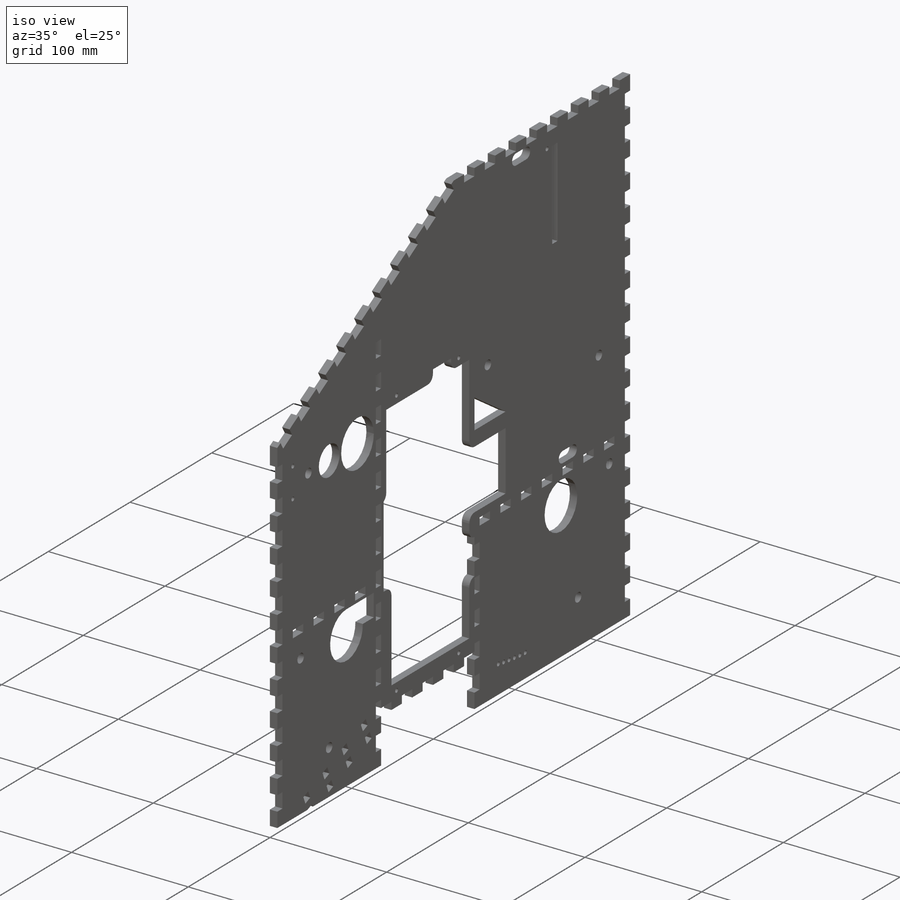
[diagram: iso view]
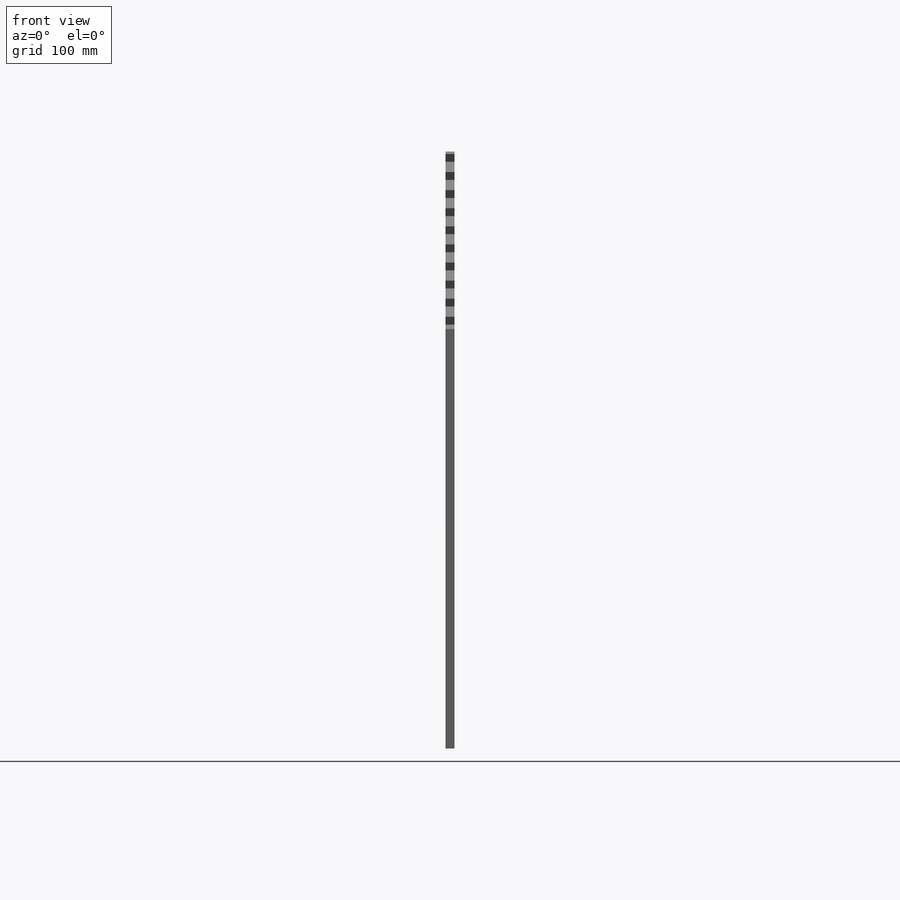
[diagram: front view]
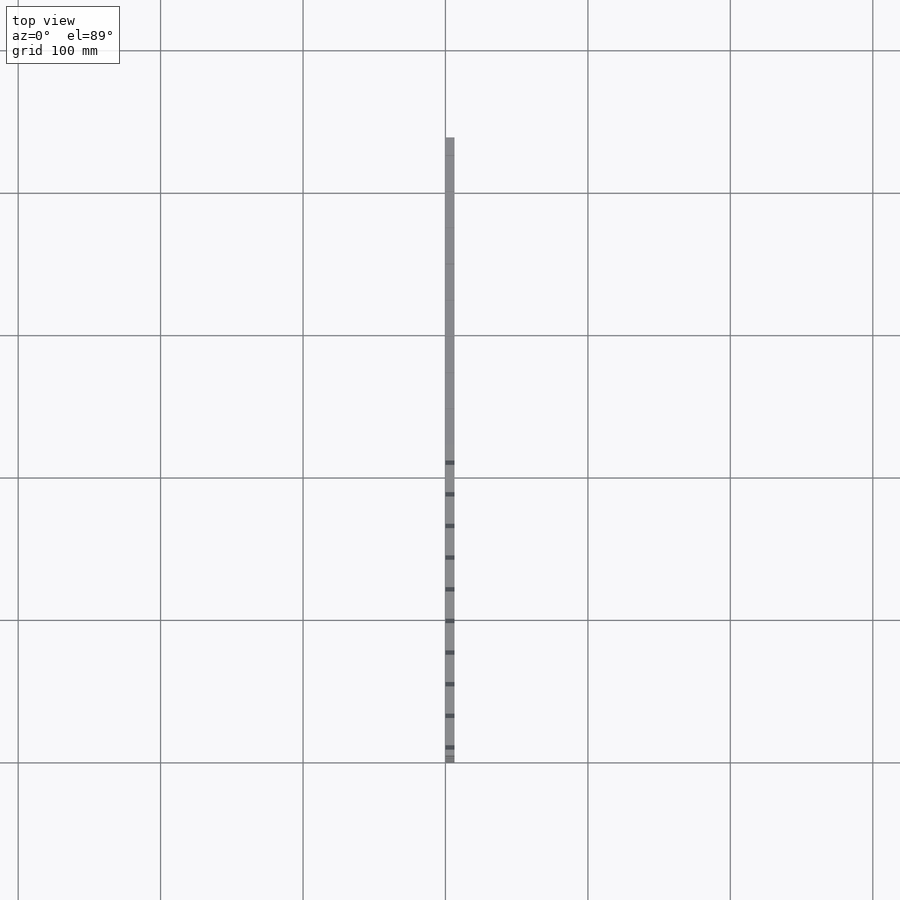
[diagram: top view]
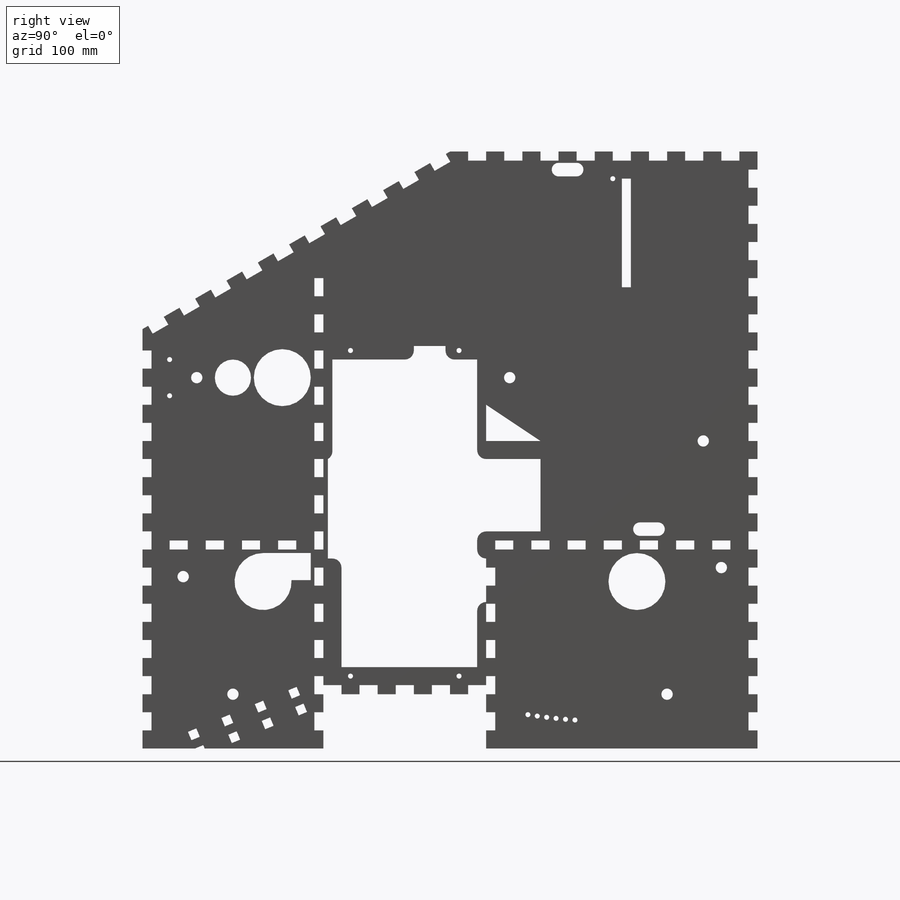
[diagram: right view]
SOLIDWORKS PART (.sldprt)
format: sldprt  version: not decoded by parser v0  size: 1,797,632 bytes
history: native  units: mm
features: sketch x35, cut_extrude x32, pattern_linear x10, extrude x3, fillet x2, material x1 (+13 scaffold rows collapsed)
feature tree (96):
  scaffold x13  (default folders/planes/origin — collapsed)
  material  "Pine"
  sketch  "Sketch2"  dims[c1.D1=431.8mm c1.D2=419.1mm c1.D3=127.0mm c1.D4=114.3mm c1.D5=38.1mm c1.D6=215.9mm c1.D7=~247.599108mm c2.D7=150.0deg]
  extrude  "Boss-Extrude1"  Depth=6.35mm
  sketch  "Sketch3"  dims[D4=7.9375mm D5=7.9375mm D1=38.1mm D2=63.5mm D3=63.5mm]
  cut_extrude  "Cut-Extrude1"  [1 undecoded]
  sketch  "Sketch4"  dims[c1.D1=3.5mm c1.D8=381.0mm c1.D2=38.1mm c1.D3=19.05mm c1.D4=381.0mm c1.D5=133.35mm c1.D6=268.2875mm c1.D7=101.6mm c2.D6=1.0deg c2.D5=10.0]
  cut_extrude  "Cut-Extrude2"  [1 undecoded]
  sketch  "Sketch5"  dims[D1=6.35mm D2=12.7mm D3=12.7mm]
  cut_extrude  "Cut-Extrude3"  [1 undecoded]
  pattern_linear  "LPattern1"  Count1=16 Count2=1 Spacing1=25.4mm Spacing2=2.54mm
  sketch  "Sketch6"  dims[D1=12.7mm]
  cut_extrude  "Cut-Extrude4"  [1 undecoded]
  pattern_linear  "LPattern2"  Count1=11 Count2=1 Spacing1=25.4mm Spacing2=2.54mm
  sketch  "Sketch7"  dims[D1=12.7mm D2=12.7mm D3=12.7mm D4=12.7mm D5=12.7mm D6=12.7mm]
  cut_extrude  "Cut-Extrude5"  [1 undecoded]
  sketch  "Sketch8"  dims[c1.D1=3.81mm c1.D2=241.3mm c2.D1=215.9mm c2.D3=6.35mm]
  cut_extrude  "Cut-Extrude6"  [1 undecoded]
  pattern_linear  "LPattern3"  Count1=10 Count2=1 Spacing1=25.4mm Spacing2=2.54mm
  sketch  "Sketch9"  dims[D1=12.7mm]
  cut_extrude  "Cut-Extrude7"  [1 undecoded]
  pattern_linear  "LPattern4"  Count1=8 Count2=1 Spacing1=25.4mm Spacing2=2.54mm
  sketch  "Sketch10"  dims[D4=3.5mm D1=273.05mm D2=19.05mm D3=247.65mm D5=19.05mm D6=19.05mm D7=12.7mm D8=6.35mm D9=6.35mm D10=~9.99874mm]
  cut_extrude  "Cut-Extrude8"  [1 undecoded]
  sketch  "Sketch11"  dims[c1.D3=7.9375mm c1.D1=260.35mm c1.D2=38.1mm c1.D4=25.4mm c1.D5=25.4mm c2.D4=16.51mm c2.D5=91.44mm]
  cut_extrude  "Cut-Extrude9"  [1 undecoded]
  sketch  "Sketch12"  dims[D2=0.254mm D1=7.0]
  cut_extrude  "Cut-Extrude13"  [1 undecoded]
  sketch  "Sketch13"  dims[c1.D2=40.0mm c1.D1=131.25mm c1.D3=36.0mm c2.D1=9.8mm]
  cut_extrude  "Cut-Extrude14"  [1 undecoded]
  sketch  "Sketch17"  dims[D1=12.7mm D2=6.35mm D3=12.7mm]
  cut_extrude  "Cut-Extrude17"  [1 undecoded]
  pattern_linear  "LPattern5"  Count1=17 Count2=1 Spacing1=25.4mm Spacing2=2.54mm
  pattern_linear  "LPattern6"  Count1=2 Count2=1 Spacing1=120.65mm Spacing2=2.54mm
  sketch  "Sketch18"  dims[D1=12.7mm D2=6.35mm]
  cut_extrude  "Cut-Extrude18"  [1 undecoded]
  pattern_linear  "LPattern7"  Count1=5 Count2=1 Spacing1=25.4mm Spacing2=2.54mm
  sketch  "Sketch19"  dims[c1.D2=3.5mm c1.D1=25.4mm c2.D2=12.7mm c2.D3=12.7mm c2.D4=12.7mm c3.D2=6.35mm c3.D3=12.7mm c3.D4=12.7mm]
  cut_extrude  "Cut-Extrude19"  [1 undecoded]
  sketch  "Sketch20"  dims[D3=8.0mm D1=107.95mm D2=28.575mm]
  cut_extrude  "Cut-Extrude20"  [1 undecoded]
  sketch  "Sketch21"  dims[c1.D2=6.35mm c1.D1=3.5mm c1.D6=3.5mm c2.D1=28.575mm c2.D3=6.35mm c3.D1=28.8925mm c3.D4=~11.876829mm c4.D4=45.0deg c4.D5=25.4mm c4.D1=9.525mm c4.D2=12.7mm c4.D3=7.9375mm]
  cut_extrude  "Cut-Extrude21"  [1 undecoded]
  sketch  "Sketch24"
  cut_extrude  "Cut-Extrude23"  [1 undecoded]
  pattern_linear  "LPattern9"  Count1=8 Count2=1 Spacing1=25.4mm Spacing2=50mm
  sketch  "Sketch25"
  cut_extrude  "Cut-Extrude24"  [1 undecoded]
  sketch  "Sketch29"  dims[c1.D1=6.35mm c1.D2=12.7mm c1.D3=6.35mm c1.D4=120.65mm c2.D4=22.5deg]
  cut_extrude  "Cut-Extrude27"  [1 undecoded]
  pattern_linear  "LPattern10"  Count1=4 Count2=1 Spacing1=25.4mm Spacing2=2.54mm
  pattern_linear  "LPattern11"  Count1=2 Count2=2 Spacing1=12.7mm Spacing2=12.7mm
  sketch  "Sketch30"  dims[D1=260.35mm D2=22.5mm]
  cut_extrude  "Cut-Extrude28"  [1 undecoded]
  sketch  "Sketch31"  dims[D2=25.4mm D1=25.4mm]
  cut_extrude  "Cut-Extrude29"  [1 undecoded]
  sketch  "Sketch32"  dims[D1=2.54mm D2=19.05mm]
  cut_extrude  "Cut-Extrude30"  [1 undecoded]
  sketch  "Sketch33"  dims[D1=6.35mm]
  cut_extrude  "Cut-Extrude31"  [1 undecoded]
  sketch  "Sketch34"
  extrude  "Boss-Extrude4"  [1 undecoded]
  sketch  "Sketch35"  dims[c1.D1=19.05mm c1.D2=44.45mm c1.D3=6.35mm c2.D2=44.45mm c2.D1=9.525mm c3.D2=12.7mm c3.D3=3.175mm]
  cut_extrude  "Cut-Extrude32"  [1 undecoded]
  sketch  "Sketch36"  dims[D1=6.35mm D2=50.8mm D3=38.1mm]
  cut_extrude  "Cut-Extrude33"  [1 undecoded]
  sketch  "Sketch38"  dims[D1=6.35mm D2=12.7mm D3=95.25mm]
  cut_extrude  "Cut-Extrude35"  [1 undecoded]
  sketch  "Sketch39"  dims[D1=12.7mm D2=25.4mm]
  cut_extrude  "Cut-Extrude36"  [1 undecoded]
  sketch  "Sketch40"
  extrude  "Boss-Extrude5"  [1 undecoded]
  sketch  "Sketch41"  dims[D1=76.2mm D2=146.05mm D3=9.525mm D4=158.75mm D5=6.35mm D6=63.5mm D7=85.725mm D8=9.525mm D9=6.35mm]
  cut_extrude  "Cut-Extrude37"  [1 undecoded]
  sketch  "Sketch42"
  cut_extrude  "Cut-Extrude38"  [1 undecoded]
  fillet  "Fillet1"  Radius=6.35mm
  sketch  "Sketch43"  dims[D1=58.42mm D2=88.9mm]
  cut_extrude  "Cut-Extrude39"  [1 undecoded]
  fillet  "Fillet2"  Radius=6.35mm
  sketch  "Sketch44"  dims[D3=7.9375mm D1=215.9mm D2=25.4mm]
  cut_extrude  "Cut-Extrude40"  [1 undecoded]
  sketch  "Sketch45"  dims[D1=7.9375mm D2=215.9mm D3=38.1mm]
  cut_extrude  "Cut-Extrude41"  [1 undecoded]
decode coverage: 43 of 82 modeling features carry decoded parameters
note: ~ marks probable driven/reference dimensions
note: 34 parameter values undecoded
summary: no parameter record found for 34 features
note: suppression state not decoded; provenance and decode notes live in map.json
